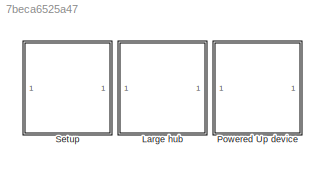
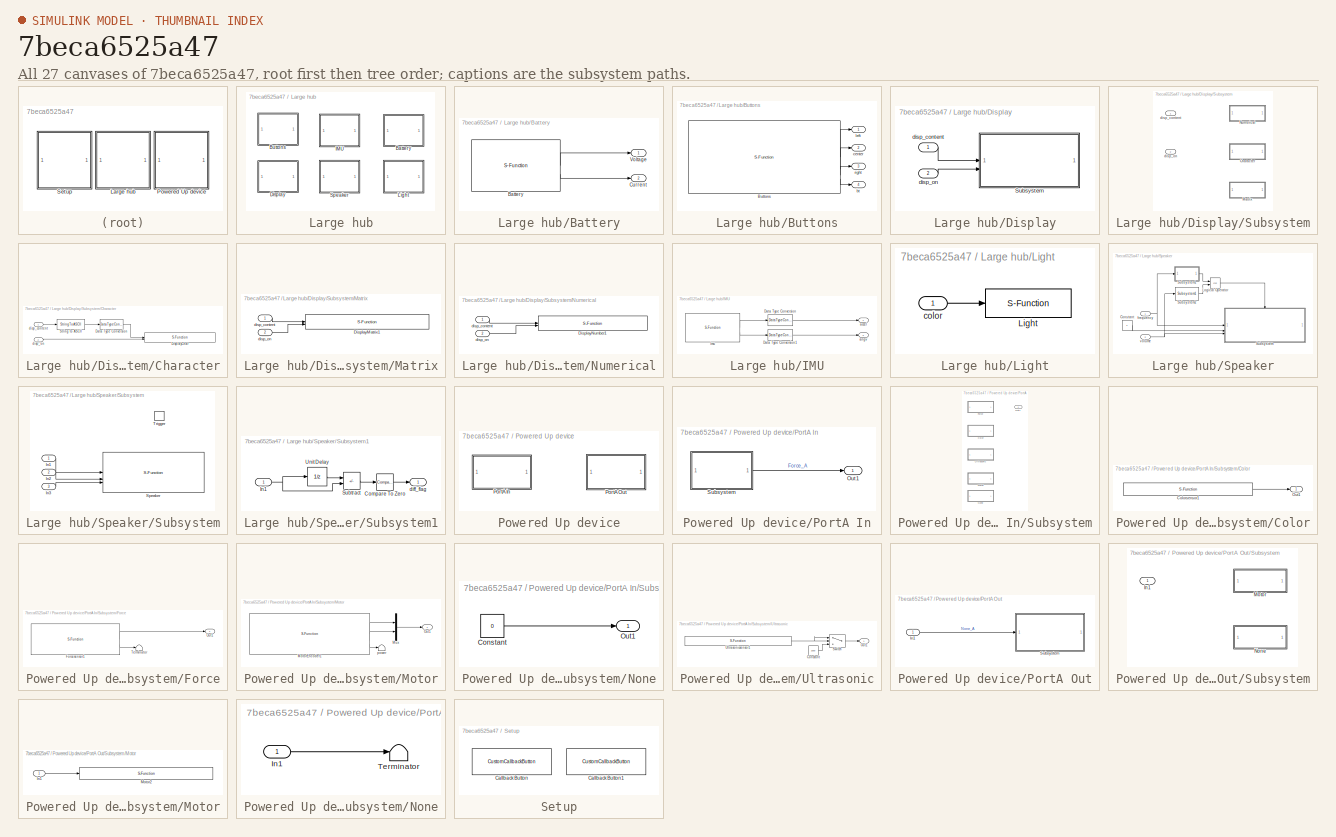
[diagram: thumbnail index - all 27 canvases of the model, root first then tree order]
MODEL slx_7beca6525a47
KIND library
CONFIG AbsTol = auto
CONFIG EnableMultiTasking = off
CONFIG FixedStep = auto
CONFIG MaxStep = auto
CONFIG MinStep = auto
CONFIG RelTol = 1e-3
CONFIG SampleTimeConstraint = Unconstrained
CONFIG SolverName = FixedStepAuto
CONFIG StartTime = 0.0
CONFIG StopTime = 10.0
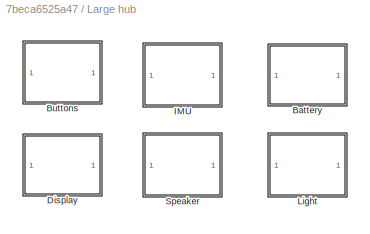
BLOCK [SubSystem] Large hub
BLOCK [SubSystem] Large hub/Battery
BLOCK [S-Function] Large hub/Battery/Battery
  EnableBusSupport = off
  FunctionName = Battery
  SFcnIsStateOwnerBlock = off
  SFunctionDeploymentMode = off
BLOCK [Outport] Large hub/Battery/Current
  Port = 2
BLOCK [Outport] Large hub/Battery/Voltage
BLOCK [SubSystem] Large hub/Buttons
BLOCK [S-Function] Large hub/Buttons/Buttons
  EnableBusSupport = off
  FunctionName = Buttons
  SFcnIsStateOwnerBlock = off
  SFunctionDeploymentMode = off
BLOCK [Outport] Large hub/Buttons/bt
  Port = 4
BLOCK [Outport] Large hub/Buttons/center
  Port = 2
BLOCK [Outport] Large hub/Buttons/left
BLOCK [Outport] Large hub/Buttons/right
  Port = 3
BLOCK [SubSystem] Large hub/Display
BLOCK [SubSystem] Large hub/Display/Subsystem
  Variant = on
  VariantControl = Subsystem
BLOCK [SubSystem] Large hub/Display/Subsystem/Character
  VariantControl = Mode==2
BLOCK [DataTypeConversion] Large hub/Display/Subsystem/Character/Data Type Conversion
  OutDataTypeStr = int8
  RndMeth = Floor
  SaturateOnIntegerOverflow = off
BLOCK [S-Function] Large hub/Display/Subsystem/Character/DisplayChar
  EnableBusSupport = off
  FunctionName = DisplayChar
  Parameters = SParameter1
  SFcnIsStateOwnerBlock = off
  SFunctionDeploymentMode = off
BLOCK [StringToASCII] Large hub/Display/Subsystem/Character/String to ASCII
  OutputVectorSize = 1
BLOCK [Inport] Large hub/Display/Subsystem/Character/disp_content
BLOCK [Inport] Large hub/Display/Subsystem/Character/disp_on
  Port = 2
BLOCK [SubSystem] Large hub/Display/Subsystem/Matrix
  VariantControl = Mode==3
BLOCK [S-Function] Large hub/Display/Subsystem/Matrix/DisplayMatrix1
  EnableBusSupport = off
  FunctionName = DisplayMatrix
  Parameters = SParameter1
  SFcnIsStateOwnerBlock = off
  SFunctionDeploymentMode = off
BLOCK [Inport] Large hub/Display/Subsystem/Matrix/disp_content
BLOCK [Inport] Large hub/Display/Subsystem/Matrix/disp_on
  Port = 2
BLOCK [SubSystem] Large hub/Display/Subsystem/Numerical
  VariantControl = Mode==1
BLOCK [S-Function] Large hub/Display/Subsystem/Numerical/DisplayNumber1
  EnableBusSupport = off
  FunctionName = DisplayNumber
  Parameters = SParameter1
  SFcnIsStateOwnerBlock = off
  SFunctionDeploymentMode = off
BLOCK [Inport] Large hub/Display/Subsystem/Numerical/disp_content
BLOCK [Inport] Large hub/Display/Subsystem/Numerical/disp_on
  Port = 2
BLOCK [Inport] Large hub/Display/Subsystem/disp_content
BLOCK [Inport] Large hub/Display/Subsystem/disp_on
  Port = 2
BLOCK [Inport] Large hub/Display/disp_content
BLOCK [Inport] Large hub/Display/disp_on
  Port = 2
BLOCK [SubSystem] Large hub/IMU
BLOCK [DataTypeConversion] Large hub/IMU/Data Type Conversion
  OutDataTypeStr = double
  RndMeth = Floor
  SaturateOnIntegerOverflow = off
BLOCK [DataTypeConversion] Large hub/IMU/Data Type Conversion1
  OutDataTypeStr = double
  RndMeth = Floor
  SaturateOnIntegerOverflow = off
BLOCK [S-Function] Large hub/IMU/Imu
  EnableBusSupport = off
  FunctionName = Imu
  SFcnIsStateOwnerBlock = off
  SFunctionDeploymentMode = off
BLOCK [Outport] Large hub/IMU/accel
BLOCK [Outport] Large hub/IMU/angv
  Port = 2
BLOCK [SubSystem] Large hub/Light
BLOCK [S-Function] Large hub/Light/Light
  EnableBusSupport = off
  FunctionName = Light
  SFcnIsStateOwnerBlock = off
  SFunctionDeploymentMode = off
BLOCK [Inport] Large hub/Light/color
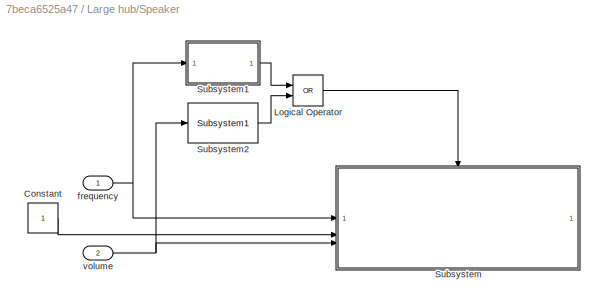
BLOCK [SubSystem] Large hub/Speaker
BLOCK [Constant] Large hub/Speaker/Constant
BLOCK [Logic] Large hub/Speaker/Logical Operator
  AllPortsSameDT = off
  Operator = OR
  OutDataTypeStr = boolean
BLOCK [SubSystem] Large hub/Speaker/Subsystem
BLOCK [Inport] Large hub/Speaker/Subsystem/In1
BLOCK [Inport] Large hub/Speaker/Subsystem/In2
  Port = 2
BLOCK [Inport] Large hub/Speaker/Subsystem/In3
  Port = 3
BLOCK [S-Function] Large hub/Speaker/Subsystem/Speaker
  EnableBusSupport = off
  FunctionName = Speaker
  SFcnIsStateOwnerBlock = off
  SFunctionDeploymentMode = off
BLOCK [TriggerPort] Large hub/Speaker/Subsystem/Trigger
  PortDimensions = 1
  StatesWhenEnabling = held
  VariantControl = (inherit)
BLOCK [SubSystem] Large hub/Speaker/Subsystem1
BLOCK [Reference] Large hub/Speaker/Subsystem1/Compare To Zero  REF=simulink/Logic and Bit
Operations/Compare
To Zero
  SourceBlock = simulink/Logic and Bit\nOperations/Compare\nTo Zero
  SourceType = Compare To Zero
BLOCK [Inport] Large hub/Speaker/Subsystem1/In1
  NameLocation = top
BLOCK [Sum] Large hub/Speaker/Subsystem1/Subtract
  IconShape = rectangular
  Inputs = +-
BLOCK [UnitDelay] Large hub/Speaker/Subsystem1/Unit Delay
  HasFrameUpgradeWarning = on
  SampleTime = -1
BLOCK [Outport] Large hub/Speaker/Subsystem1/diff_flag
BLOCK [Reference] Large hub/Speaker/Subsystem2  REF=$bdroot/Large hub/Speaker/Subsystem1
  SourceBlock = $bdroot/Large hub/Speaker/Subsystem1
  SourceType = SubSystem
BLOCK [Inport] Large hub/Speaker/frequency
BLOCK [Inport] Large hub/Speaker/volume
  Port = 2
BLOCK [SubSystem] Powered Up device
BLOCK [SubSystem] Powered Up device/PortA In
BLOCK [Outport] Powered Up device/PortA In/Out1
BLOCK [SubSystem] Powered Up device/PortA In/Subsystem
  Variant = on
  VariantControl = Subsystem
BLOCK [SubSystem] Powered Up device/PortA In/Subsystem/Color
  VariantControl = SensorType==2
BLOCK [S-Function] Powered Up device/PortA In/Subsystem/Color/Colorsensor1
  EnableBusSupport = off
  FunctionName = Colorsensor
  Parameters = SParameter1, SParameter2, SParameter3
  SFcnIsStateOwnerBlock = off
  SFunctionDeploymentMode = off
BLOCK [Outport] Powered Up device/PortA In/Subsystem/Color/Out1
BLOCK [SubSystem] Powered Up device/PortA In/Subsystem/Force
  VariantControl = SensorType==1
BLOCK [S-Function] Powered Up device/PortA In/Subsystem/Force/Forcesensor1
  EnableBusSupport = off
  FunctionName = Forcesensor
  Parameters = SParameter1
  SFcnIsStateOwnerBlock = off
  SFunctionDeploymentMode = off
BLOCK [Outport] Powered Up device/PortA In/Subsystem/Force/Out1
BLOCK [Terminator] Powered Up device/PortA In/Subsystem/Force/Terminator
BLOCK [SubSystem] Powered Up device/PortA In/Subsystem/Motor
  VariantControl = SensorType==4
BLOCK [S-Function] Powered Up device/PortA In/Subsystem/Motor/MotorEncoder1
  EnableBusSupport = off
  FunctionName = MotorEncoder
  Parameters = SParameter1
  SFcnIsStateOwnerBlock = off
  SFunctionDeploymentMode = off
BLOCK [Mux] Powered Up device/PortA In/Subsystem/Motor/Mux
  DisplayOption = bar
  Inputs = 2
BLOCK [Outport] Powered Up device/PortA In/Subsystem/Motor/Out1
BLOCK [Terminator] Powered Up device/PortA In/Subsystem/Motor/power
BLOCK [SubSystem] Powered Up device/PortA In/Subsystem/None
  VariantControl = SensorType==5
BLOCK [Constant] Powered Up device/PortA In/Subsystem/None/Constant
  Value = 0
BLOCK [Outport] Powered Up device/PortA In/Subsystem/None/Out1
BLOCK [Outport] Powered Up device/PortA In/Subsystem/Out1
BLOCK [SubSystem] Powered Up device/PortA In/Subsystem/Ultrasonic
  VariantControl = SensorType==3
BLOCK [Constant] Powered Up device/PortA In/Subsystem/Ultrasonic/Constant
  Value = 2000
BLOCK [Outport] Powered Up device/PortA In/Subsystem/Ultrasonic/Out1
BLOCK [Switch] Powered Up device/PortA In/Subsystem/Ultrasonic/Switch
  Criteria = u2 > Threshold
  InputSameDT = off
  SaturateOnIntegerOverflow = off
BLOCK [S-Function] Powered Up device/PortA In/Subsystem/Ultrasonic/Ultrasonicsensor1
  EnableBusSupport = off
  FunctionName = Ultrasonicsensor
  Parameters = SParameter1, SParameter2, SParameter3
  SFcnIsStateOwnerBlock = off
  SFunctionDeploymentMode = off
BLOCK [SubSystem] Powered Up device/PortA Out
BLOCK [Inport] Powered Up device/PortA Out/In1
BLOCK [SubSystem] Powered Up device/PortA Out/Subsystem
  Variant = on
  VariantControl = Subsystem
BLOCK [Inport] Powered Up device/PortA Out/Subsystem/In1
BLOCK [SubSystem] Powered Up device/PortA Out/Subsystem/Motor
  VariantControl = Mode~=4
BLOCK [Inport] Powered Up device/PortA Out/Subsystem/Motor/In1
BLOCK [S-Function] Powered Up device/PortA Out/Subsystem/Motor/Motor2
  EnableBusSupport = off
  FunctionName = Motor
  Parameters = SParameter1, SParameter2, SParameter3, SParameter4
  SFcnIsStateOwnerBlock = off
  SFunctionDeploymentMode = off
BLOCK [SubSystem] Powered Up device/PortA Out/Subsystem/None
  VariantControl = Mode==4
BLOCK [Inport] Powered Up device/PortA Out/Subsystem/None/In1
BLOCK [Terminator] Powered Up device/PortA Out/Subsystem/None/Terminator
BLOCK [SubSystem] Setup
BLOCK [CustomCallbackButton] Setup/Callback Button
  Configuration = {"components":[{"name":"BackgroundImageComponent","settings":{"image":{"size":[0,0],"src":"default","srcOrientation":"Right"},"position":[0,0,1,1]}},{"name":"ButtonStateComponent","settings":{"buttonType":"momentary","clickFcn":"controlsetupspikert_callback;\ncopyspikert(2)\ncopyspikert(3)","latched":false,"offValue":null,"onValue":1,"position":[0,0,1,1],"pressDelay":"500","pressFcn":"","repeatInt...<+2094ch>
  CustomBackgroundColor = {"color":[0.8509803921568627,0.3254901960784314,0.09803921568627451],"show":true}
  Description = Generate and build code. write executable to SPIKE
BLOCK [CustomCallbackButton] Setup/Callback Button1
  Configuration = {"components":[{"name":"BackgroundImageComponent","settings":{"image":{"size":[0,0],"src":"default","srcOrientation":"Right"},"position":[0,0,1,1]}},{"name":"ButtonStateComponent","settings":{"buttonType":"momentary","clickFcn":"copyspikert(4)","latched":false,"offValue":null,"onValue":1,"position":[0,0,1,1],"pressDelay":"500","pressFcn":"","repeatInterval":"0","states":[{"horizontalAlignment":"ce...<+2095ch>
  CustomBackgroundColor = {"color":[0,0.4470588235294118,0.7411764705882353],"show":true}
  Description = Generate and build code. write executable to SPIKE
LINE Large hub/Battery/Battery:1 -> Large hub/Battery/Voltage:1
LINE Large hub/Battery/Battery:2 -> Large hub/Battery/Current:1
LINE Large hub/Buttons/Buttons:1 -> Large hub/Buttons/left:1
LINE Large hub/Buttons/Buttons:2 -> Large hub/Buttons/center:1
LINE Large hub/Buttons/Buttons:3 -> Large hub/Buttons/right:1
LINE Large hub/Buttons/Buttons:4 -> Large hub/Buttons/bt:1
LINE Large hub/Display/Subsystem/Character/Data Type Conversion:1 -> Large hub/Display/Subsystem/Character/DisplayChar:1
LINE Large hub/Display/Subsystem/Character/String to ASCII:1 -> Large hub/Display/Subsystem/Character/Data Type Conversion:1
LINE Large hub/Display/Subsystem/Character/disp_content:1 -> Large hub/Display/Subsystem/Character/String to ASCII:1
LINE Large hub/Display/Subsystem/Character/disp_on:1 -> Large hub/Display/Subsystem/Character/DisplayChar:2
LINE Large hub/Display/Subsystem/Matrix/disp_content:1 -> Large hub/Display/Subsystem/Matrix/DisplayMatrix1:1
LINE Large hub/Display/Subsystem/Matrix/disp_on:1 -> Large hub/Display/Subsystem/Matrix/DisplayMatrix1:2
LINE Large hub/Display/Subsystem/Numerical/disp_content:1 -> Large hub/Display/Subsystem/Numerical/DisplayNumber1:1
LINE Large hub/Display/Subsystem/Numerical/disp_on:1 -> Large hub/Display/Subsystem/Numerical/DisplayNumber1:2
LINE Large hub/Display/disp_content:1 -> Large hub/Display/Subsystem:1
LINE Large hub/Display/disp_on:1 -> Large hub/Display/Subsystem:2
LINE Large hub/IMU/Data Type Conversion1:1 -> Large hub/IMU/angv:1
LINE Large hub/IMU/Data Type Conversion:1 -> Large hub/IMU/accel:1
LINE Large hub/IMU/Imu:1 -> Large hub/IMU/Data Type Conversion:1
LINE Large hub/IMU/Imu:2 -> Large hub/IMU/Data Type Conversion1:1
LINE Large hub/Light/color:1 -> Large hub/Light/Light:1
LINE Large hub/Speaker/Constant:1 -> Large hub/Speaker/Subsystem:2
LINE Large hub/Speaker/Logical Operator:1 -> Large hub/Speaker/Subsystem:trigger
LINE Large hub/Speaker/Subsystem/In1:1 -> Large hub/Speaker/Subsystem/Speaker:1
LINE Large hub/Speaker/Subsystem/In2:1 -> Large hub/Speaker/Subsystem/Speaker:2
LINE Large hub/Speaker/Subsystem/In3:1 -> Large hub/Speaker/Subsystem/Speaker:3
LINE Large hub/Speaker/Subsystem1/Compare To Zero:1 -> Large hub/Speaker/Subsystem1/diff_flag:1
NET Large hub/Speaker/Subsystem1/In1:1 -> Large hub/Speaker/Subsystem1/Subtract:2, Large hub/Speaker/Subsystem1/Unit Delay:1
LINE Large hub/Speaker/Subsystem1/Subtract:1 -> Large hub/Speaker/Subsystem1/Compare To Zero:1
LINE Large hub/Speaker/Subsystem1/Unit Delay:1 -> Large hub/Speaker/Subsystem1/Subtract:1
LINE Large hub/Speaker/Subsystem1:1 -> Large hub/Speaker/Logical Operator:1
LINE Large hub/Speaker/Subsystem2:1 -> Large hub/Speaker/Logical Operator:2
NET Large hub/Speaker/frequency:1 -> Large hub/Speaker/Subsystem1:1, Large hub/Speaker/Subsystem:1
NET Large hub/Speaker/volume:1 -> Large hub/Speaker/Subsystem2:1, Large hub/Speaker/Subsystem:3
note: NET lines group one-source signal fan-out (src -> all destinations, sorted); 1:1 wires keep LINE
